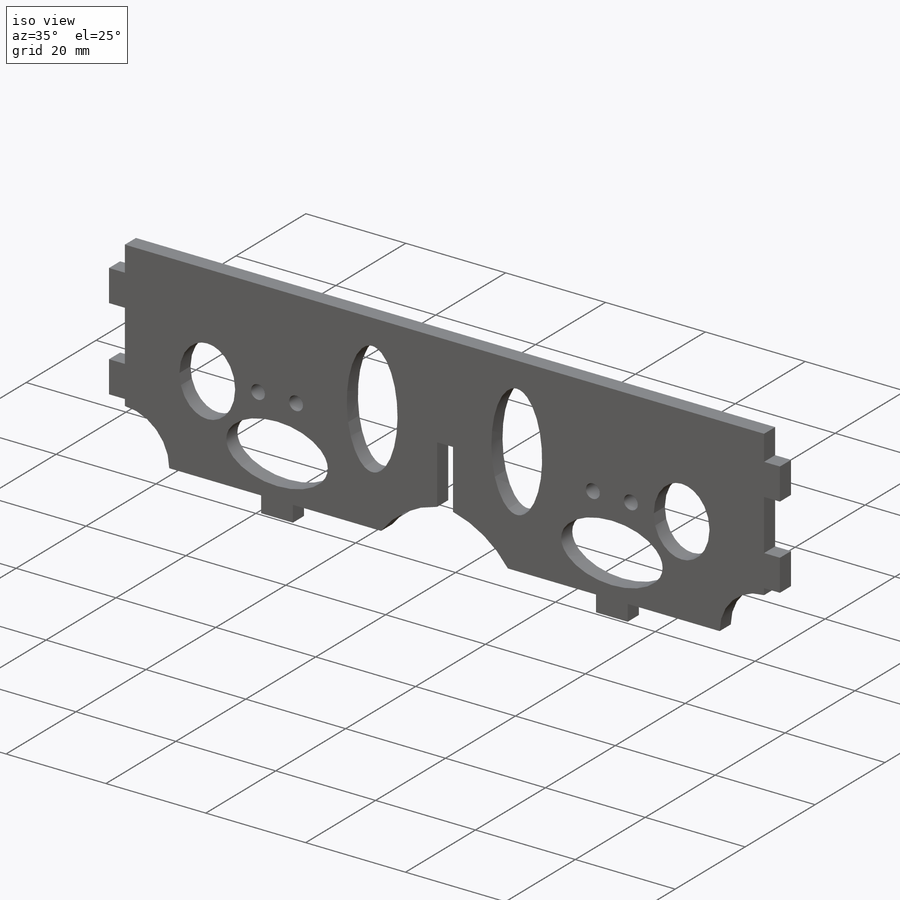
[diagram: iso view]
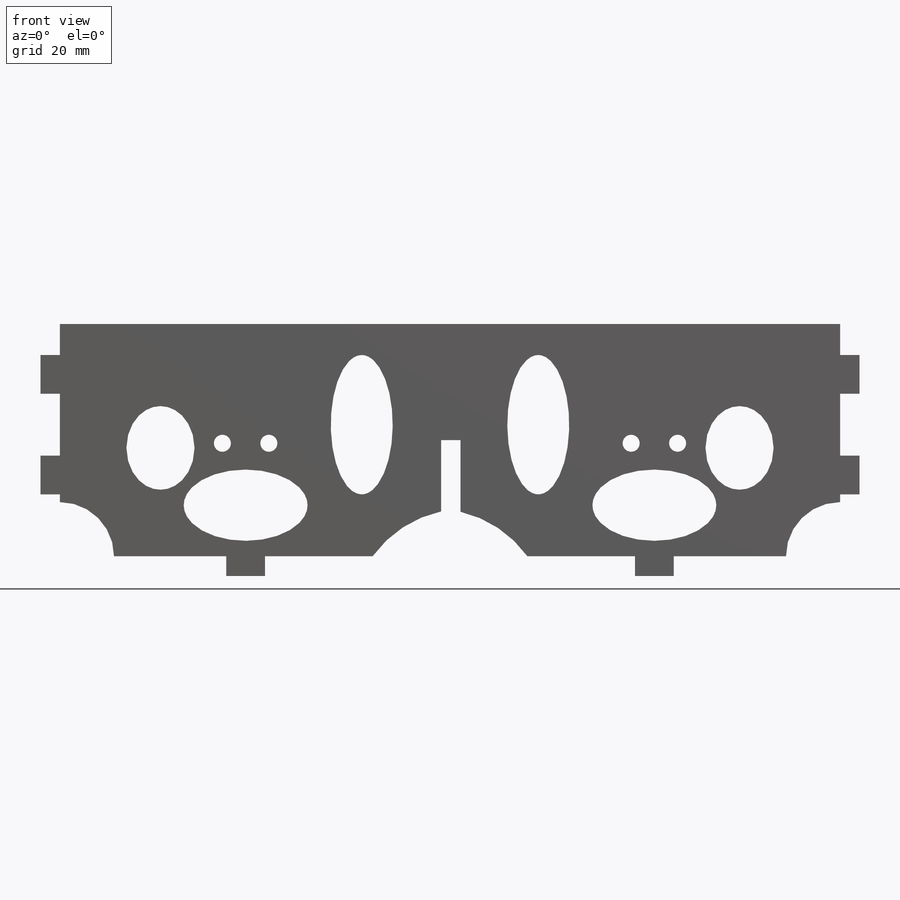
[diagram: front view]
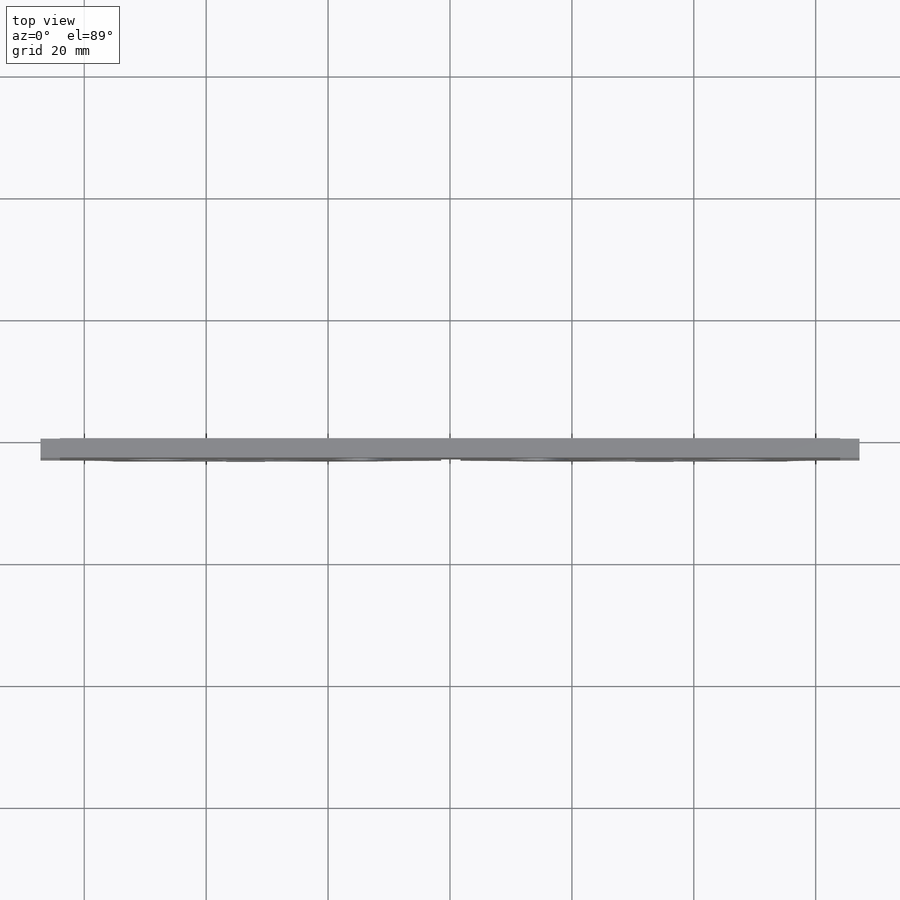
[diagram: top view]
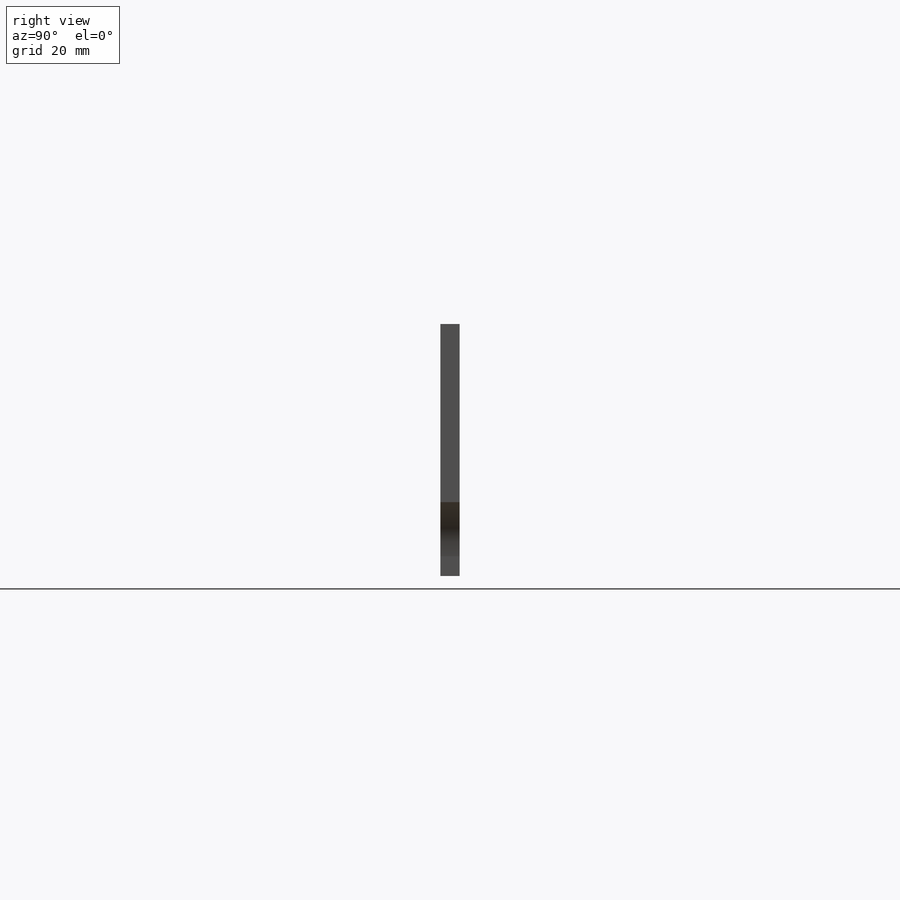
[diagram: right view]
SOLIDWORKS PART (.sldprt)
format: sldprt  version: not decoded by parser v0  size: 433,664 bytes
history: native  units: mm
features: sketch x6, cut_extrude x4, mirror x4, extrude x2, material x1 (+16 scaffold rows collapsed)
feature tree (33):
  scaffold x16  (default folders/planes/origin — collapsed)
  material  "Material <not specified>"
  sketch  "Sketch1"  dims[D1=38.1mm D2=128.016mm]
  extrude  "main body"  Depth=3.175mm
  sketch  "Sketch2"  dims[c1.D1=2.794mm c1.D2=2.794mm c1.D3=12.192mm c1.D4=33.02mm c1.D5=30.988mm c2.D4=30.48mm c2.D5=26.162mm c3.D4=33.528mm c3.D5=18.542mm c3.D3=3.81mm]
  cut_extrude  "ubracket holes"  [1 undecoded]
  sketch  "Sketch3"  dims[c1.D1=6.35mm c1.D2=3.175mm c1.D3=3.175mm c1.D4=6.35mm c1.D5=20.32mm c1.D6=6.35mm c1.D7=3.175mm c1.D8=6.35mm c1.D9=3.2258mm c2.D6=2.54mm c2.D10=12.7mm c2.D5=7.62mm c3.D10=10.16mm]
  extrude  "tabs"  Depth=3.175mm
  sketch  "Sketch4"  dims[c1.D1=11.43mm c1.D2=5.08mm c1.D3=21.59mm c1.D4=19.05mm c1.D5=5.842mm c1.D6=10.16mm c1.D7=10.16mm c1.D8=6.858mm c1.D9=5.588mm c1.D10=0.254mm c1.D11=13.97mm c1.D12=3.175mm c1.D13=5.588mm c1.D14=3.175mm c1.D15=4.572mm c1.D16=6.858mm c2.D10=17.78mm c2.D12=6.35mm]
  cut_extrude  "holes for control arms"  [1 undecoded]
  mirror  "mirror of ubracket holes"
  mirror  "mirror of tabs"
  mirror  "Mirror3"
  sketch  "Sketch5"  dims[c1.D1=3.2258mm c1.D2=25.4mm c2.D1=19.05mm c2.D2=3.175mm]
  cut_extrude  "slot for nose panel"  [1 undecoded]
  sketch  "Sketch6"  dims[c1.D5=12.7mm c1.D7=12.7mm c1.D1=6.35mm c1.D2=6.35mm c1.D3=8.89mm c1.D4=8.89mm c1.D6=58.42mm c2.D5=8.89mm c2.D6=11.43mm c2.D1=10.16mm c2.D2=12.7mm c3.D1=12.7mm c3.D2=10.16mm c3.D5=~16.263936mm c4.D2=7.62mm]
  cut_extrude  "cut corner for screw access"  [1 undecoded]
  mirror  "Mirror4"
decode coverage: 8 of 16 modeling features carry decoded parameters
note: ~ marks probable driven/reference dimensions
note: 4 parameter values undecoded
summary: no parameter record found for 4 features
note: suppression state not decoded; provenance and decode notes live in map.json
